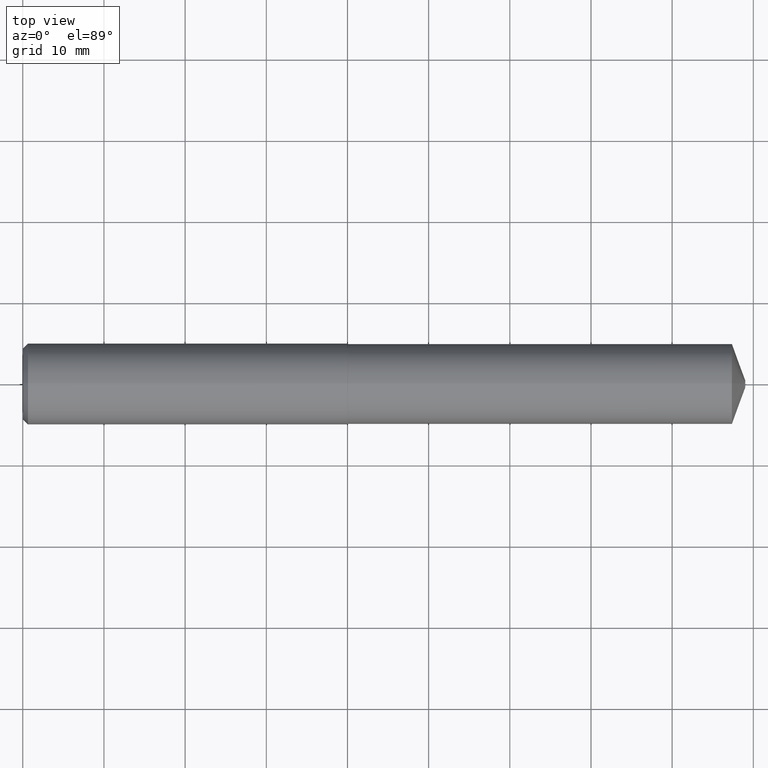
[diagram: clean part render]
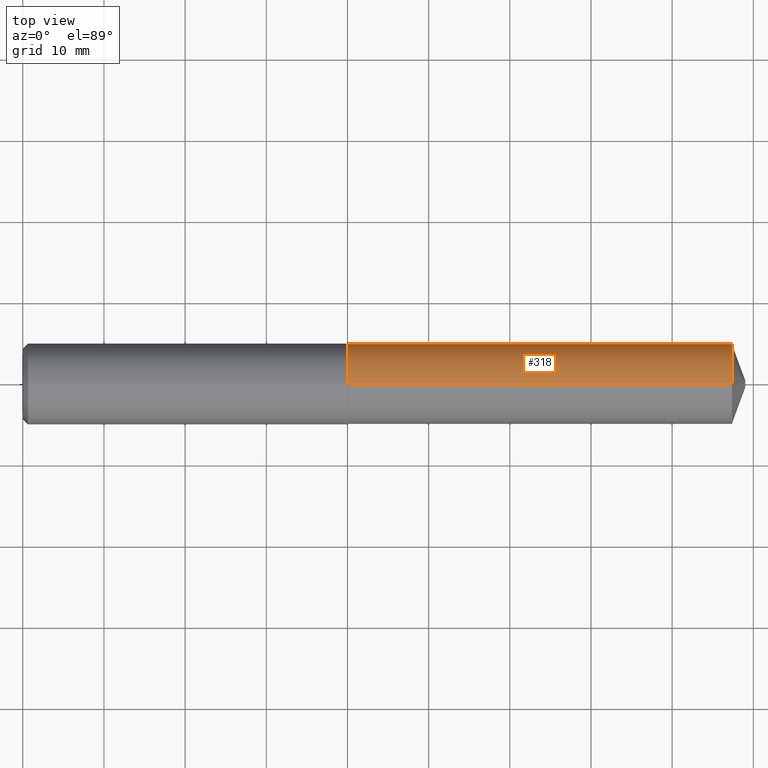
[diagram: same view with one face highlighted and labeled with its STEP entity id]
A machine part, top view. The second image highlights one B-rep face of the part: STEP entity #318.
In plain terms, the highlighted cylindrical surface (partial cylindrical patch) has radius 4.9403 mm, axis along (1, -0, -0).
Its self-contained STEP definition (entity closure, byte-faithful):
#8 = VERTEX_POINT ( 'NONE', #329 ) ;
#12 = DIRECTION ( 'NONE',  ( 1.000000000000000000, -0.000000000000000000, -0.000000000000000000 ) ) ;
#29 = ORIENTED_EDGE ( 'NONE', *, *, #102, .F. ) ;
#60 = VECTOR ( 'NONE', #164, 39.37007874015748143 ) ;
#84 = AXIS2_PLACEMENT_3D ( 'NONE', #290, #258, #115 ) ;
#89 = VERTEX_POINT ( 'NONE', #339 ) ;
#90 = CYLINDRICAL_SURFACE ( 'NONE', #84, 0.1945000000000003115 ) ;
#91 = AXIS2_PLACEMENT_3D ( 'NONE', #279, #12, #131 ) ;
#93 = EDGE_CURVE ( 'NONE', #89, #8, #179, .T. ) ;
#96 = VERTEX_POINT ( 'NONE', #193 ) ;
#102 = EDGE_CURVE ( 'NONE', #96, #89, #249, .T. ) ;
#105 = CARTESIAN_POINT ( 'NONE',  ( -0.03808593750000075634, 0.000000000000000000, -0.1945000000000003115 ) ) ;
#113 = ORIENTED_EDGE ( 'NONE', *, *, #93, .F. ) ;
#114 = ORIENTED_EDGE ( 'NONE', *, *, #250, .T. ) ;
#115 = DIRECTION ( 'NONE',  ( 0.000000000000000000, 0.000000000000000000, -1.000000000000000000 ) ) ;
#116 = AXIS2_PLACEMENT_3D ( 'NONE', #245, #218, #362 ) ;
#120 = EDGE_LOOP ( 'NONE', ( #114, #264, #113, #29 ) ) ;
#131 = DIRECTION ( 'NONE',  ( 0.000000000000000000, 0.000000000000000000, -1.000000000000000000 ) ) ;
#134 = CIRCLE ( 'NONE', #91, 0.1945000000000001728 ) ;
#146 = CARTESIAN_POINT ( 'NONE',  ( 1.577153543307086903, 2.381938024341605034E-17, 0.1945000000000001728 ) ) ;
#153 = VECTOR ( 'NONE', #175, 39.37007874015748143 ) ;
#164 = DIRECTION ( 'NONE',  ( 1.000000000000000000, -0.000000000000000000, -0.000000000000000000 ) ) ;
#175 = DIRECTION ( 'NONE',  ( 1.000000000000000000, -0.000000000000000000, -0.000000000000000000 ) ) ;
#179 = CIRCLE ( 'NONE', #116, 0.1945000000000004503 ) ;
#193 = CARTESIAN_POINT ( 'NONE',  ( 1.577153543307086903, 0.000000000000000000, -0.1945000000000001728 ) ) ;
#206 = CARTESIAN_POINT ( 'NONE',  ( -0.03808593750000075634, 2.381938024341605650E-17, 0.1945000000000003115 ) ) ;
#218 = DIRECTION ( 'NONE',  ( 1.000000000000000000, -0.000000000000000000, -0.000000000000000000 ) ) ;
#245 = CARTESIAN_POINT ( 'NONE',  ( 3.439514276408898397, 0.000000000000000000, 0.000000000000000000 ) ) ;
#249 = LINE ( 'NONE', #105, #60 ) ;
#250 = EDGE_CURVE ( 'NONE', #96, #356, #134, .T. ) ;
#258 = DIRECTION ( 'NONE',  ( 1.000000000000000000, -0.000000000000000000, -0.000000000000000000 ) ) ;
#264 = ORIENTED_EDGE ( 'NONE', *, *, #278, .T. ) ;
#278 = EDGE_CURVE ( 'NONE', #356, #8, #350, .T. ) ;
#279 = CARTESIAN_POINT ( 'NONE',  ( 1.577153543307086903, 0.000000000000000000, 0.000000000000000000 ) ) ;
#290 = CARTESIAN_POINT ( 'NONE',  ( -0.03808593750000075634, 0.000000000000000000, 0.000000000000000000 ) ) ;
#317 = FACE_OUTER_BOUND ( 'NONE', #120, .T. ) ;
#318 = ADVANCED_FACE ( 'NONE', ( #317 ), #90, .T. ) ;
#329 = CARTESIAN_POINT ( 'NONE',  ( 3.439514276408898397, 0.000000000000000000, 0.1945000000000004781 ) ) ;
#339 = CARTESIAN_POINT ( 'NONE',  ( 3.439514276408898397, 2.381938024341608115E-17, -0.1945000000000004781 ) ) ;
#350 = LINE ( 'NONE', #206, #153 ) ;
#356 = VERTEX_POINT ( 'NONE', #146 ) ;
#362 = DIRECTION ( 'NONE',  ( 0.000000000000000000, 0.000000000000000000, -1.000000000000000000 ) ) ;